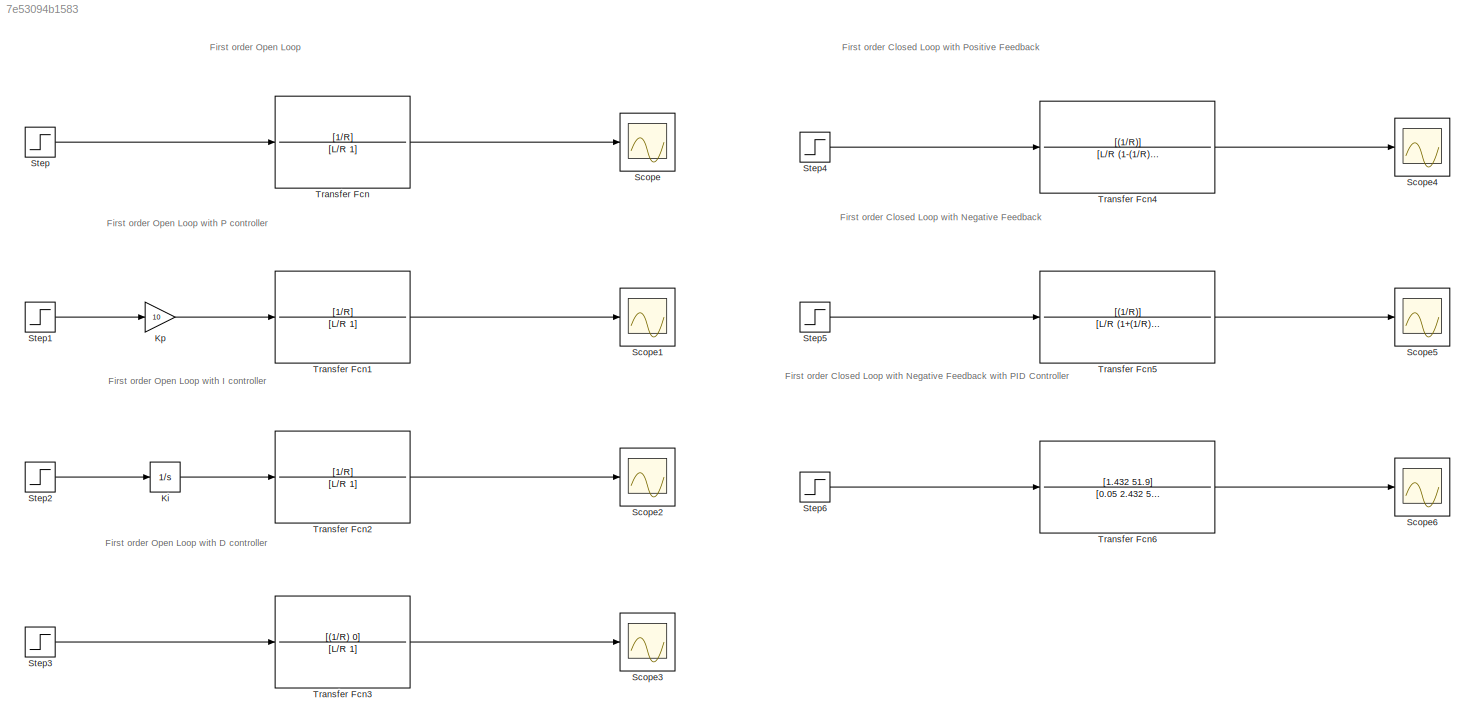
MODEL slx_7e53094b1583
KIND model
CONFIG AbsTol = auto
CONFIG EnableMultiTasking = off
CONFIG FixedStep = auto
CONFIG MaxStep = auto
CONFIG MinStep = auto
CONFIG RelTol = 1e-3
CONFIG SampleTimeConstraint = Unconstrained
CONFIG SolverName = VariableStepAuto
CONFIG StartTime = 0.0
CONFIG StopTime = 100
BLOCK [Integrator] Ki
  Ports = [1, 1]
BLOCK [Gain] Kp
  Gain = 10
BLOCK [Scope] Scope
  Floating = off
  NumInputPorts = 1
  Ports = [1]
  ScopeSpecificationString = Simulink.scopes.TimeScopeBlockCfg('CurrentConfiguration', extmgr.ConfigurationSet(extmgr.Configuration('Core','General UI',true),extmgr.Configuration('Core','Source UI',true),extmgr.Configuration('Sources','WiredSimulink',true),extmgr.Configuration('Visuals','Time Domain',true,'SerializedDisplays',{struct('MinYLimReal','-0.00125','MaxYLimReal','0.01125','YLabelReal','','MinYLimMag','0.00000','MaxY...<+1661ch>
BLOCK [Scope] Scope1
  Floating = off
  NumInputPorts = 1
  Ports = [1]
  ScopeSpecificationString = Simulink.scopes.TimeScopeBlockCfg('CurrentConfiguration', extmgr.ConfigurationSet(extmgr.Configuration('Core','General UI',true),extmgr.Configuration('Core','Source UI',true),extmgr.Configuration('Sources','WiredSimulink',true,'DataLoggingVariableName','ScopeData1'),extmgr.Configuration('Visuals','Time Domain',true,'SerializedDisplays',{struct('MinYLimReal','-0.0125','MaxYLimReal','0.1125','YLabel...<+1695ch>
BLOCK [Scope] Scope2
  Floating = off
  NumInputPorts = 1
  Ports = [1]
  ScopeSpecificationString = Simulink.scopes.TimeScopeBlockCfg('CurrentConfiguration', extmgr.ConfigurationSet(extmgr.Configuration('Core','General UI',true),extmgr.Configuration('Core','Source UI',true),extmgr.Configuration('Sources','WiredSimulink',true,'DataLoggingVariableName','ScopeData2'),extmgr.Configuration('Visuals','Time Domain',true,'SerializedDisplays',{struct('MinYLimReal','-0.12369','MaxYLimReal','1.11319','YLab...<+1707ch>
BLOCK [Scope] Scope3
  Floating = off
  NumInputPorts = 1
  Ports = [1]
  ScopeSpecificationString = Simulink.scopes.TimeScopeBlockCfg('CurrentConfiguration', extmgr.ConfigurationSet(extmgr.Configuration('Core','General UI',true),extmgr.Configuration('Core','Source UI',true),extmgr.Configuration('Sources','WiredSimulink',true,'DataLoggingVariableName','ScopeData3'),extmgr.Configuration('Visuals','Time Domain',true,'SerializedDisplays',{struct('MinYLimReal','-0.025','MaxYLimReal','0.225','YLabelRe...<+1687ch>
BLOCK [Scope] Scope4
  Floating = off
  NumInputPorts = 1
  Ports = [1]
  ScopeSpecificationString = Simulink.scopes.TimeScopeBlockCfg('CurrentConfiguration', extmgr.ConfigurationSet(extmgr.Configuration('Core','General UI',true),extmgr.Configuration('Core','Source UI',true),extmgr.Configuration('Sources','WiredSimulink',true,'DataLoggingVariableName','ScopeData4'),extmgr.Configuration('Visuals','Time Domain',true,'SerializedDisplays',{struct('MinYLimReal','-0.00126','MaxYLimReal','0.01136','YLab...<+1727ch>
BLOCK [Scope] Scope5
  Floating = off
  NumInputPorts = 1
  Ports = [1]
  ScopeSpecificationString = Simulink.scopes.TimeScopeBlockCfg('CurrentConfiguration', extmgr.ConfigurationSet(extmgr.Configuration('Core','General UI',true),extmgr.Configuration('Core','Source UI',true),extmgr.Configuration('Sources','WiredSimulink',true,'DataLoggingVariableName','ScopeData5'),extmgr.Configuration('Visuals','Time Domain',true,'SerializedDisplays',{struct('MinYLimReal','-0.00124','MaxYLimReal','0.01114','YLab...<+1728ch>
BLOCK [Scope] Scope6
  Floating = off
  NumInputPorts = 1
  Ports = [1]
  ScopeSpecificationString = Simulink.scopes.TimeScopeBlockCfg('CurrentConfiguration', extmgr.ConfigurationSet(extmgr.Configuration('Core','General UI',true),extmgr.Configuration('Core','Source UI',true),extmgr.Configuration('Sources','WiredSimulink',true,'DataLoggingVariableName','ScopeData6'),extmgr.Configuration('Visuals','Time Domain',true,'SerializedDisplays',{struct('MinYLimReal','-0.1326','MaxYLimReal','1.19341','YLabe...<+1747ch>
BLOCK [Step] Step
  SampleTime = 0
BLOCK [Step] Step1
  SampleTime = 0
BLOCK [Step] Step2
  SampleTime = 0
BLOCK [Step] Step3
  SampleTime = 0
BLOCK [Step] Step4
  SampleTime = 0
BLOCK [Step] Step5
  SampleTime = 0
BLOCK [Step] Step6
  SampleTime = 0
BLOCK [TransferFcn] Transfer Fcn
  Denominator = [L/R 1]
  Numerator = [1/R]
BLOCK [TransferFcn] Transfer Fcn1
  Denominator = [L/R 1]
  Numerator = [1/R]
BLOCK [TransferFcn] Transfer Fcn2
  Denominator = [L/R 1]
  Numerator = [1/R]
BLOCK [TransferFcn] Transfer Fcn3
  Denominator = [L/R 1]
  Numerator = [(1/R) 0]
BLOCK [TransferFcn] Transfer Fcn4
  Denominator = [L/R (1-(1/R))]
  Numerator = [(1/R)]
BLOCK [TransferFcn] Transfer Fcn5
  Denominator = [L/R (1+(1/R))]
  Numerator = [(1/R)]
BLOCK [TransferFcn] Transfer Fcn6
  Denominator = [0.05 2.432 51.9]
  Numerator = [1.432 51.9]
ANNOTATION (root): First order Closed Loop with Negative Feedback with PID Controller
ANNOTATION (root): First order Closed Loop with Negative Feedback
ANNOTATION (root): First order Closed Loop with Positive Feedback
ANNOTATION (root): First order Open Loop with D controller
ANNOTATION (root): First order Open Loop with I controller
ANNOTATION (root): First order Open Loop with P controller
ANNOTATION (root): First order Open Loop
LINE Ki:1 -> Transfer Fcn2:1
LINE Kp:1 -> Transfer Fcn1:1
LINE Step1:1 -> Kp:1
LINE Step2:1 -> Ki:1
LINE Step3:1 -> Transfer Fcn3:1
LINE Step4:1 -> Transfer Fcn4:1
LINE Step5:1 -> Transfer Fcn5:1
LINE Step6:1 -> Transfer Fcn6:1
LINE Step:1 -> Transfer Fcn:1
LINE Transfer Fcn1:1 -> Scope1:1
LINE Transfer Fcn2:1 -> Scope2:1
LINE Transfer Fcn3:1 -> Scope3:1
LINE Transfer Fcn4:1 -> Scope4:1
LINE Transfer Fcn5:1 -> Scope5:1
LINE Transfer Fcn6:1 -> Scope6:1
LINE Transfer Fcn:1 -> Scope:1
